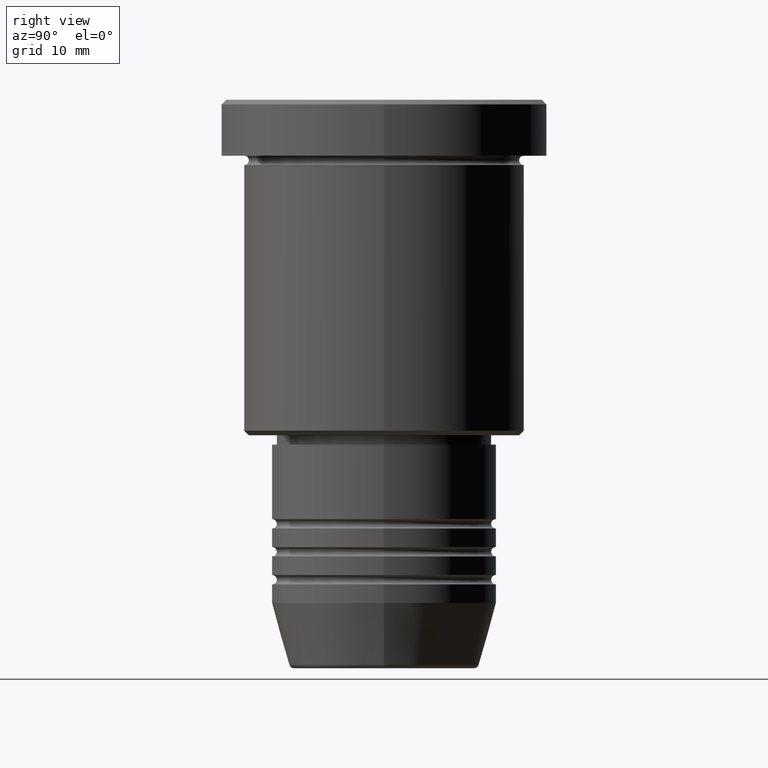
[diagram: clean part render]
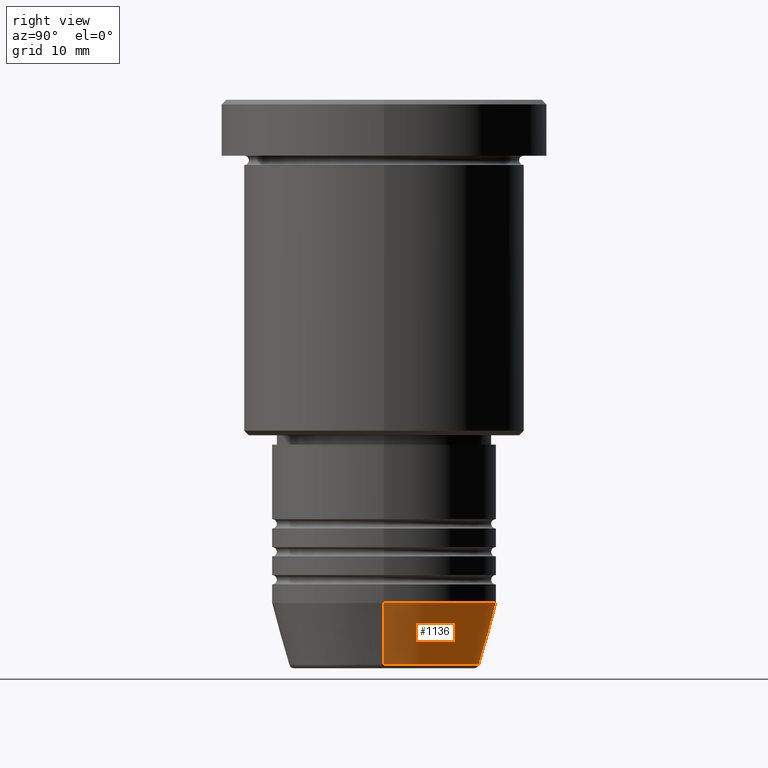
[diagram: same view with one face highlighted and labeled with its STEP entity id]
A machine part, right view. The second image highlights one B-rep face of the part: STEP entity #1136.
In plain terms, the highlighted conical surface has half-angle 15 deg.
Its self-contained STEP definition (entity closure, byte-faithful):
#62 = EDGE_CURVE ( 'NONE', #771, #172, #65, .T. ) ;
#64 = DIRECTION ( 'NONE',  ( 1.000000000000000000, 0.000000000000000000, 0.000000000000000000 ) ) ;
#65 = CIRCLE ( 'NONE', #1059, 10.22365507213719305 ) ;
#74 = VERTEX_POINT ( 'NONE', #819 ) ;
#114 = ORIENTED_EDGE ( 'NONE', *, *, #913, .F. ) ;
#172 = VERTEX_POINT ( 'NONE', #869 ) ;
#191 = EDGE_CURVE ( 'NONE', #172, #645, #302, .T. ) ;
#209 = DIRECTION ( 'NONE',  ( -0.000000000000000000, -0.000000000000000000, 1.000000000000000000 ) ) ;
#217 = DIRECTION ( 'NONE',  ( -0.2588190451025213501, 3.169619151431772337E-17, 0.9659258262890680902 ) ) ;
#302 = LINE ( 'NONE', #1130, #954 ) ;
#316 = CARTESIAN_POINT ( 'NONE',  ( 0.000000000000000000, 0.000000000000000000, -53.99999999999999289 ) ) ;
#340 = DIRECTION ( 'NONE',  ( 0.2588190451025213501, 0.000000000000000000, 0.9659258262890680902 ) ) ;
#513 = FACE_OUTER_BOUND ( 'NONE', #1161, .T. ) ;
#522 = DIRECTION ( 'NONE',  ( -0.000000000000000000, -0.000000000000000000, 1.000000000000000000 ) ) ;
#540 = CARTESIAN_POINT ( 'NONE',  ( -12.00000000000000000, 1.469576158976823947E-15, -53.99999999999999289 ) ) ;
#604 = AXIS2_PLACEMENT_3D ( 'NONE', #1072, #522, #895 ) ;
#625 = CARTESIAN_POINT ( 'NONE',  ( 10.22365507213719305, 0.000000000000000000, -60.62940952255125637 ) ) ;
#645 = VERTEX_POINT ( 'NONE', #540 ) ;
#666 = AXIS2_PLACEMENT_3D ( 'NONE', #316, #877, #64 ) ;
#771 = VERTEX_POINT ( 'NONE', #625 ) ;
#791 = EDGE_CURVE ( 'NONE', #771, #74, #1171, .T. ) ;
#815 = CARTESIAN_POINT ( 'NONE',  ( 12.00000000000000000, 0.000000000000000000, -53.99999999999999289 ) ) ;
#819 = CARTESIAN_POINT ( 'NONE',  ( 12.00000000000000000, 0.000000000000000000, -53.99999999999999289 ) ) ;
#842 = CARTESIAN_POINT ( 'NONE',  ( 0.000000000000000000, 0.000000000000000000, -60.62940952255125637 ) ) ;
#869 = CARTESIAN_POINT ( 'NONE',  ( -10.22365507213719305, 1.360806402472382941E-15, -60.62940952255125637 ) ) ;
#877 = DIRECTION ( 'NONE',  ( -0.000000000000000000, -0.000000000000000000, 1.000000000000000000 ) ) ;
#880 = ORIENTED_EDGE ( 'NONE', *, *, #62, .T. ) ;
#895 = DIRECTION ( 'NONE',  ( 1.000000000000000000, 0.000000000000000000, 0.000000000000000000 ) ) ;
#907 = DIRECTION ( 'NONE',  ( 1.000000000000000000, 0.000000000000000000, 0.000000000000000000 ) ) ;
#913 = EDGE_CURVE ( 'NONE', #74, #645, #1064, .T. ) ;
#926 = CONICAL_SURFACE ( 'NONE', #666, 12.00000000000000000, 0.2617993877991500740 ) ;
#954 = VECTOR ( 'NONE', #217, 1000.000000000000000 ) ;
#1014 = ORIENTED_EDGE ( 'NONE', *, *, #191, .T. ) ;
#1059 = AXIS2_PLACEMENT_3D ( 'NONE', #842, #209, #907 ) ;
#1064 = CIRCLE ( 'NONE', #604, 12.00000000000000000 ) ;
#1072 = CARTESIAN_POINT ( 'NONE',  ( 0.000000000000000000, 0.000000000000000000, -53.99999999999999289 ) ) ;
#1091 = ORIENTED_EDGE ( 'NONE', *, *, #791, .F. ) ;
#1130 = CARTESIAN_POINT ( 'NONE',  ( -12.00000000000000000, 1.469576158976823947E-15, -53.99999999999999289 ) ) ;
#1136 = ADVANCED_FACE ( 'NONE', ( #513 ), #926, .T. ) ;
#1140 = VECTOR ( 'NONE', #340, 1000.000000000000000 ) ;
#1161 = EDGE_LOOP ( 'NONE', ( #880, #1014, #114, #1091 ) ) ;
#1171 = LINE ( 'NONE', #815, #1140 ) ;